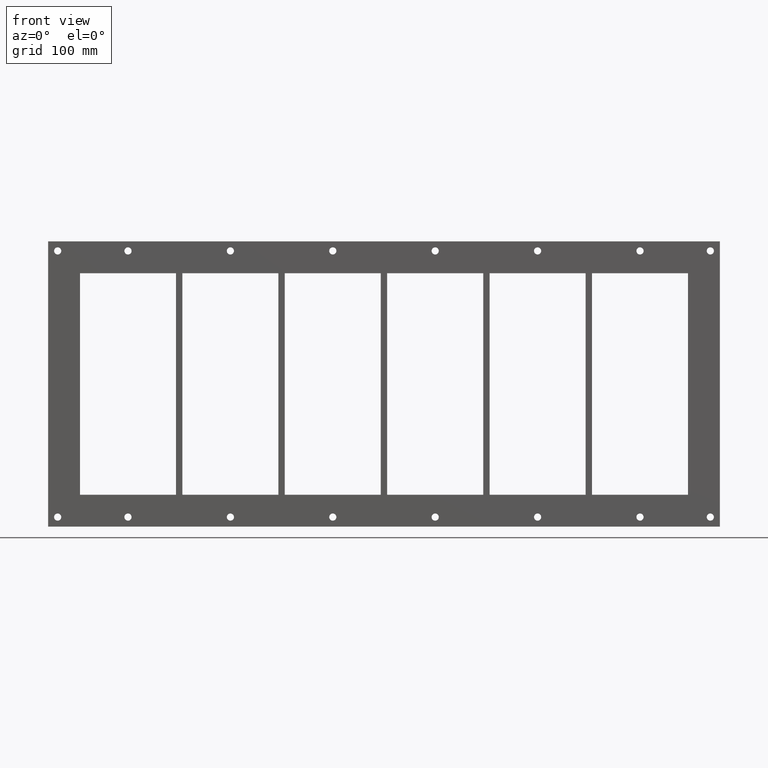
[diagram: clean part render]
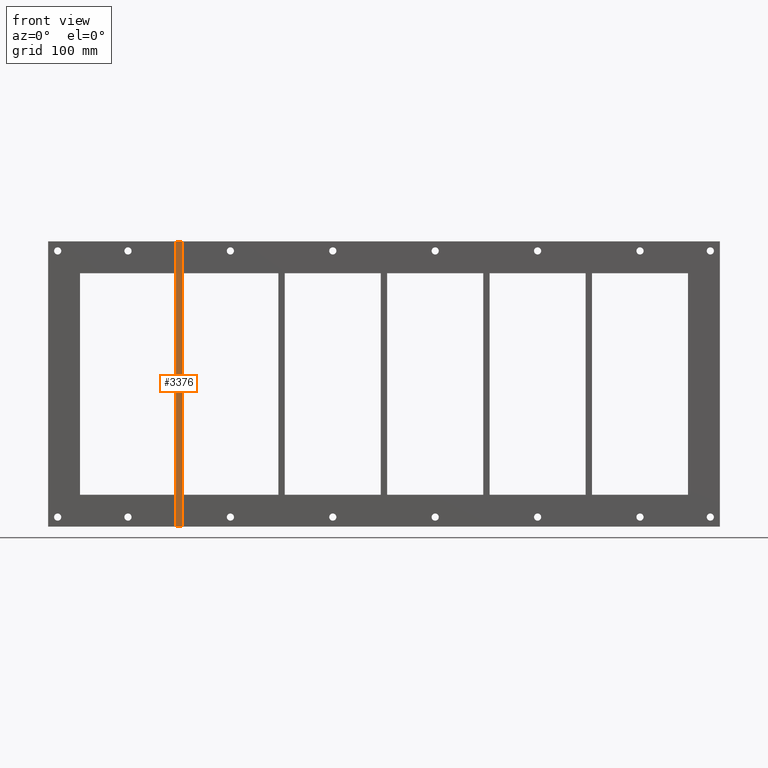
[diagram: same view with one face highlighted and labeled with its STEP entity id]
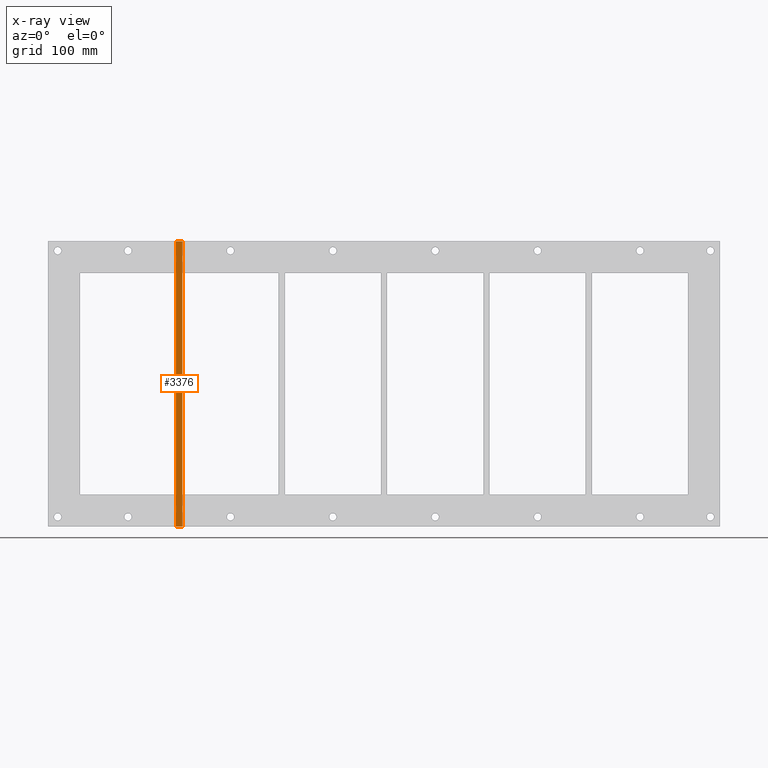
[diagram: x-ray of the same camera — body ghosted, the highlighted face saturated]
A machine part, front view. The second image highlights one B-rep face of the part: STEP entity #3376.
The next image is the same camera in x-ray: the body ghosted, the highlighted face saturated — about 0% of this face is hidden behind the body in this view.
In plain terms, the highlighted planar face has unit normal (0, -1, -0).
Its self-contained STEP definition (entity closure, byte-faithful):
#3234=CARTESIAN_POINT('',(0.0,0.0,358.0));
#3235=VERTEX_POINT('',#3234);
#3252=CARTESIAN_POINT('',(0.0,0.0,0.0));
#3253=VERTEX_POINT('',#3252);
#3260=CARTESIAN_POINT('',(0.0,0.0,0.0));
#3261=DIRECTION('',(0.0,0.0,1.0));
#3262=VECTOR('',#3261,358.0);
#3263=LINE('',#3260,#3262);
#3264=EDGE_CURVE('',#3253,#3235,#3263,.T.);
#3317=CARTESIAN_POINT('',(7.999999999999994,0.0,358.0));
#3318=VERTEX_POINT('',#3317);
#3325=CARTESIAN_POINT('',(7.999999999999994,0.0,0.0));
#3326=VERTEX_POINT('',#3325);
#3327=CARTESIAN_POINT('',(7.999999999999994,0.0,0.0));
#3328=DIRECTION('',(0.0,0.0,1.0));
#3329=VECTOR('',#3328,358.0);
#3330=LINE('',#3327,#3329);
#3331=EDGE_CURVE('',#3326,#3318,#3330,.T.);
#3355=CARTESIAN_POINT('',(7.999999999999994,0.0,0.0));
#3356=DIRECTION('',(0.0,-1.0,0.0));
#3357=DIRECTION('',(0.0,0.0,-1.0));
#3358=AXIS2_PLACEMENT_3D('',#3355,#3356,#3357);
#3359=PLANE('',#3358);
#3360=CARTESIAN_POINT('',(7.999999999999994,0.0,358.0));
#3361=DIRECTION('',(-1.0,0.0,0.0));
#3362=VECTOR('',#3361,7.999999999999994);
#3363=LINE('',#3360,#3362);
#3364=EDGE_CURVE('',#3318,#3235,#3363,.T.);
#3365=ORIENTED_EDGE('',*,*,#3364,.T.);
#3366=ORIENTED_EDGE('',*,*,#3264,.F.);
#3367=CARTESIAN_POINT('',(0.0,0.0,0.0));
#3368=DIRECTION('',(1.0,0.0,0.0));
#3369=VECTOR('',#3368,7.999999999999994);
#3370=LINE('',#3367,#3369);
#3371=EDGE_CURVE('',#3253,#3326,#3370,.T.);
#3372=ORIENTED_EDGE('',*,*,#3371,.T.);
#3373=ORIENTED_EDGE('',*,*,#3331,.T.);
#3374=EDGE_LOOP('',(#3365,#3366,#3372,#3373));
#3375=FACE_OUTER_BOUND('',#3374,.T.);
#3376=ADVANCED_FACE('',(#3375),#3359,.T.);